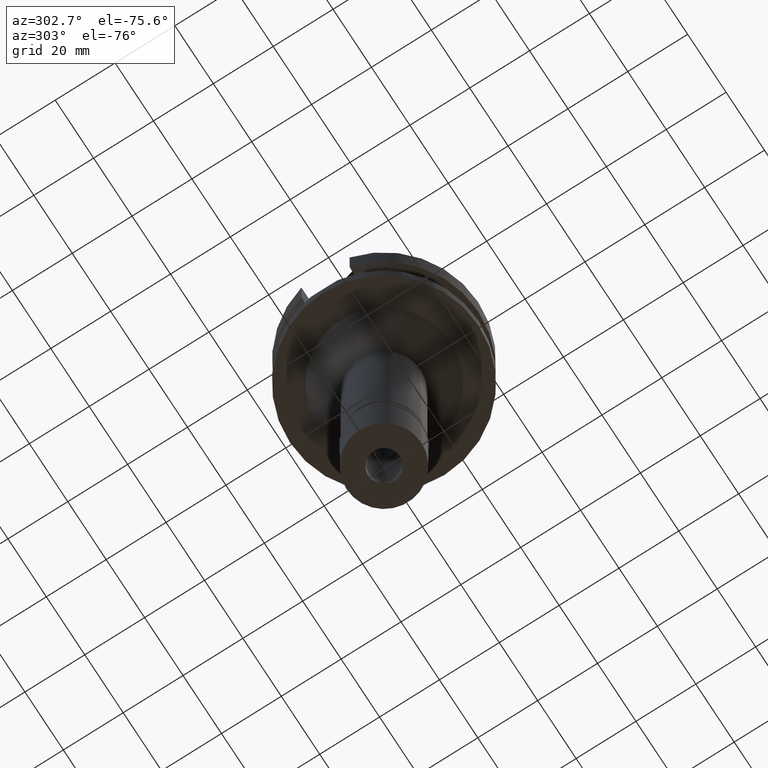
[diagram: clean part render]
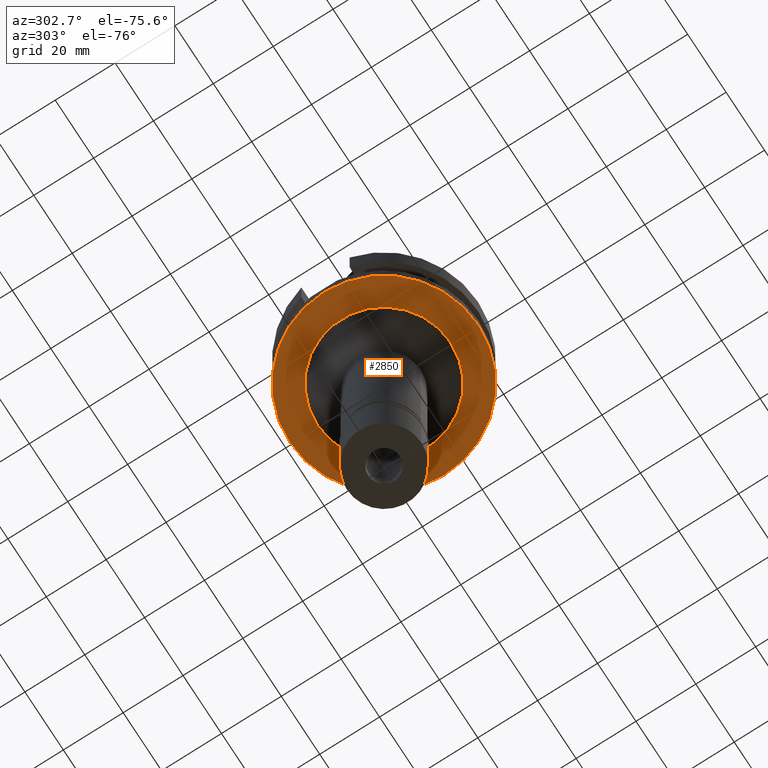
[diagram: same view with one face highlighted and labeled with its STEP entity id]
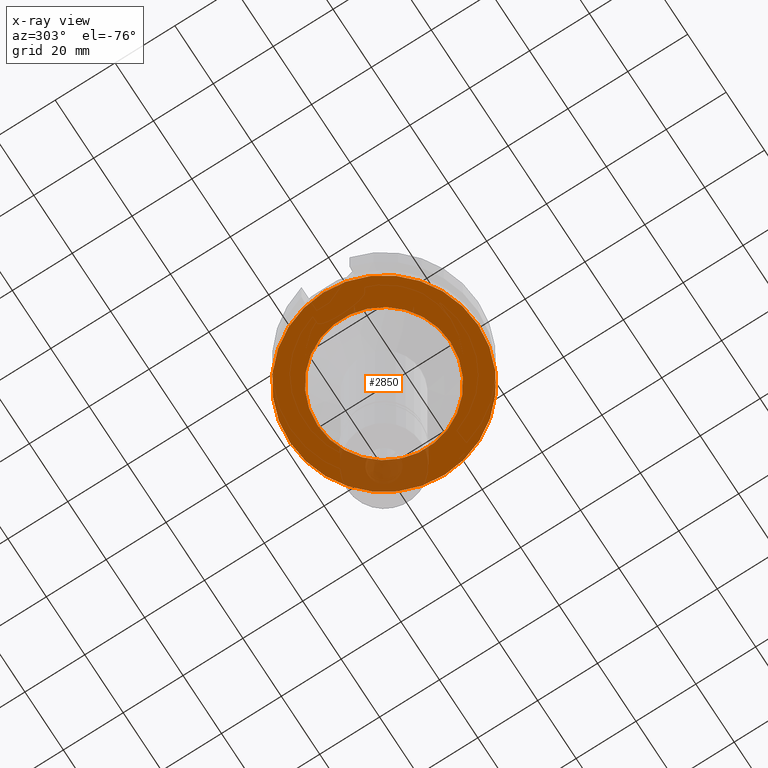
[diagram: x-ray of the same camera — body ghosted, the highlighted face saturated]
A machine part, auxiliary view. The second image highlights one B-rep face of the part: STEP entity #2850.
The next image is the same camera in x-ray: the body ghosted, the highlighted face saturated — about 15% of this face is hidden behind the body in this view.
In plain terms, the highlighted planar face has unit normal (0, 0, -1).
Its self-contained STEP definition (entity closure, byte-faithful):
#96 = VERTEX_POINT ( 'NONE', #2423 ) ;
#103 = AXIS2_PLACEMENT_3D ( 'NONE', #2607, #2176, #2389 ) ;
#168 = CARTESIAN_POINT ( 'NONE',  ( 0.0000000000000000000, 22.25000000000000000, -27.00000000000000000 ) ) ;
#316 = CIRCLE ( 'NONE', #1077, 22.25000000000000000 ) ;
#380 = ORIENTED_EDGE ( 'NONE', *, *, #2905, .F. ) ;
#394 = EDGE_LOOP ( 'NONE', ( #1128, #2606 ) ) ;
#500 = VERTEX_POINT ( 'NONE', #168 ) ;
#511 = AXIS2_PLACEMENT_3D ( 'NONE', #1337, #1131, #2100 ) ;
#589 = ORIENTED_EDGE ( 'NONE', *, *, #1437, .F. ) ;
#810 = CIRCLE ( 'NONE', #2338, 31.50000000000000000 ) ;
#815 = EDGE_CURVE ( 'NONE', #96, #500, #316, .T. ) ;
#827 = DIRECTION ( 'NONE',  ( 0.0000000000000000000, 0.0000000000000000000, 1.000000000000000000 ) ) ;
#855 = DIRECTION ( 'NONE',  ( 0.0000000000000000000, -1.000000000000000000, 0.0000000000000000000 ) ) ;
#902 = DIRECTION ( 'NONE',  ( 0.0000000000000000000, -1.000000000000000000, 0.0000000000000000000 ) ) ;
#973 = DIRECTION ( 'NONE',  ( 0.0000000000000000000, -1.000000000000000000, 0.0000000000000000000 ) ) ;
#982 = VERTEX_POINT ( 'NONE', #1599 ) ;
#984 = DIRECTION ( 'NONE',  ( 0.0000000000000000000, 0.0000000000000000000, -1.000000000000000000 ) ) ;
#1007 = CIRCLE ( 'NONE', #103, 22.25000000000000000 ) ;
#1077 = AXIS2_PLACEMENT_3D ( 'NONE', #1684, #984, #973 ) ;
#1128 = ORIENTED_EDGE ( 'NONE', *, *, #1142, .F. ) ;
#1131 = DIRECTION ( 'NONE',  ( 0.0000000000000000000, 0.0000000000000000000, 1.000000000000000000 ) ) ;
#1142 = EDGE_CURVE ( 'NONE', #500, #96, #1007, .T. ) ;
#1144 = CARTESIAN_POINT ( 'NONE',  ( 0.0000000000000000000, 0.0000000000000000000, -27.00000000000000000 ) ) ;
#1162 = CIRCLE ( 'NONE', #511, 31.50000000000000000 ) ;
#1315 = EDGE_LOOP ( 'NONE', ( #380, #589 ) ) ;
#1316 = CARTESIAN_POINT ( 'NONE',  ( 0.0000000000000000000, 0.0000000000000000000, -27.00000000000000000 ) ) ;
#1337 = CARTESIAN_POINT ( 'NONE',  ( 0.0000000000000000000, 0.0000000000000000000, -27.00000000000000000 ) ) ;
#1351 = DIRECTION ( 'NONE',  ( 0.0000000000000000000, 0.0000000000000000000, -1.000000000000000000 ) ) ;
#1437 = EDGE_CURVE ( 'NONE', #1755, #982, #810, .T. ) ;
#1599 = CARTESIAN_POINT ( 'NONE',  ( 0.0000000000000000000, 31.50000000000000000, -27.00000000000000000 ) ) ;
#1617 = PLANE ( 'NONE',  #1714 ) ;
#1684 = CARTESIAN_POINT ( 'NONE',  ( 0.0000000000000000000, 0.0000000000000000000, -27.00000000000000000 ) ) ;
#1714 = AXIS2_PLACEMENT_3D ( 'NONE', #1144, #1351, #902 ) ;
#1755 = VERTEX_POINT ( 'NONE', #2491 ) ;
#2100 = DIRECTION ( 'NONE',  ( 0.0000000000000000000, 1.000000000000000000, 0.0000000000000000000 ) ) ;
#2176 = DIRECTION ( 'NONE',  ( 0.0000000000000000000, 0.0000000000000000000, -1.000000000000000000 ) ) ;
#2298 = FACE_OUTER_BOUND ( 'NONE', #1315, .T. ) ;
#2326 = FACE_BOUND ( 'NONE', #394, .T. ) ;
#2338 = AXIS2_PLACEMENT_3D ( 'NONE', #1316, #827, #855 ) ;
#2389 = DIRECTION ( 'NONE',  ( 0.0000000000000000000, 1.000000000000000000, 0.0000000000000000000 ) ) ;
#2423 = CARTESIAN_POINT ( 'NONE',  ( 0.0000000000000000000, -22.25000000000000000, -27.00000000000000000 ) ) ;
#2491 = CARTESIAN_POINT ( 'NONE',  ( 0.0000000000000000000, -31.50000000000000000, -27.00000000000000000 ) ) ;
#2606 = ORIENTED_EDGE ( 'NONE', *, *, #815, .F. ) ;
#2607 = CARTESIAN_POINT ( 'NONE',  ( 0.0000000000000000000, 0.0000000000000000000, -27.00000000000000000 ) ) ;
#2850 = ADVANCED_FACE ( 'NONE', ( #2298, #2326 ), #1617, .T. ) ;
#2905 = EDGE_CURVE ( 'NONE', #982, #1755, #1162, .T. ) ;